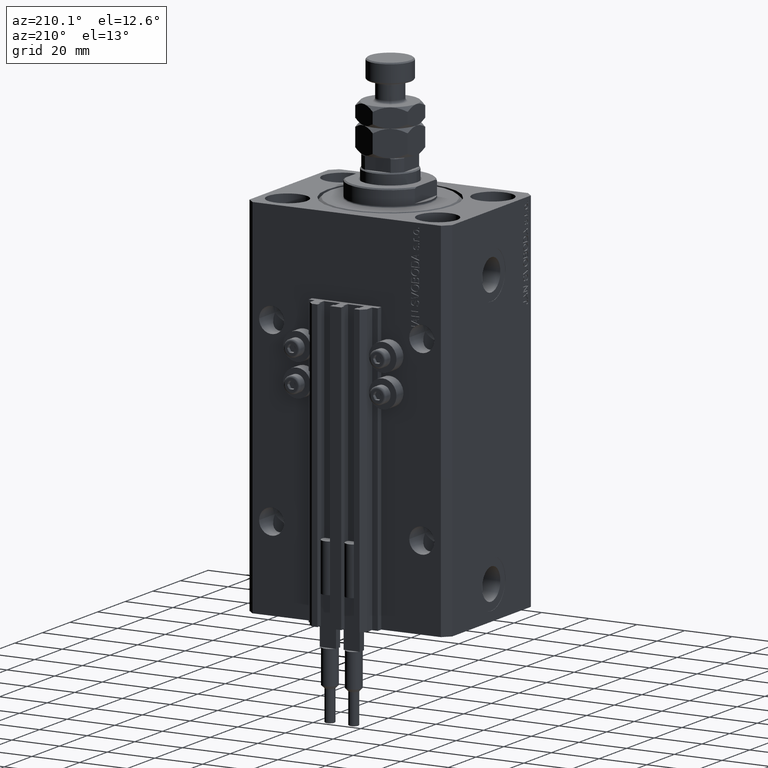
[diagram: clean part render]
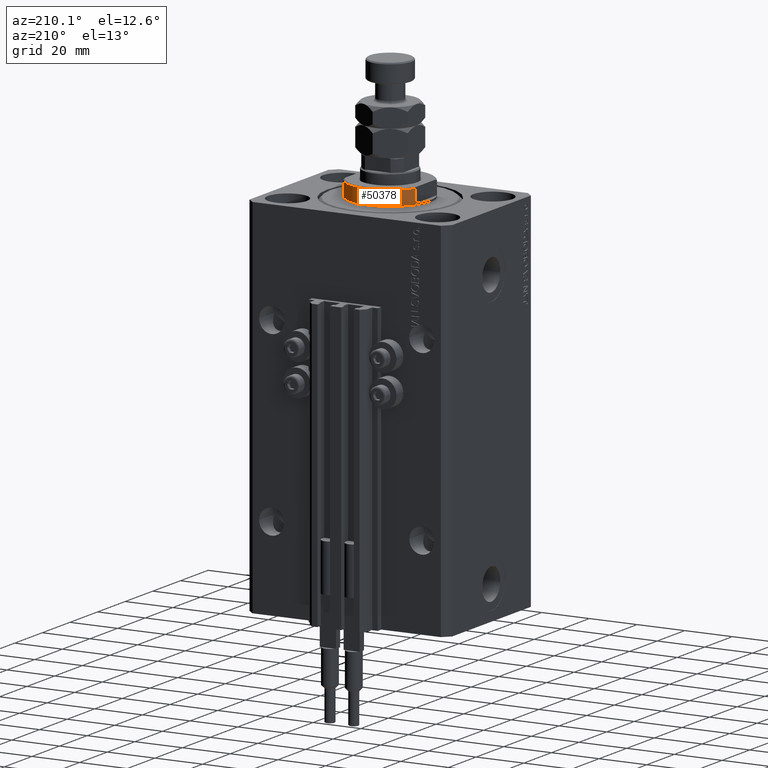
[diagram: same view with one face highlighted and labeled with its STEP entity id]
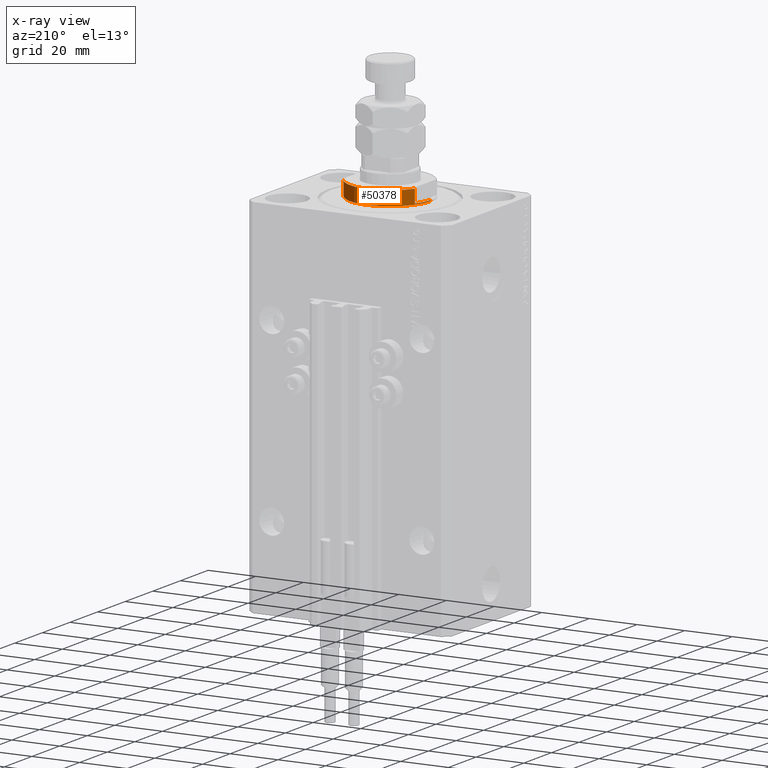
[diagram: x-ray of the same camera — body ghosted, the highlighted face saturated]
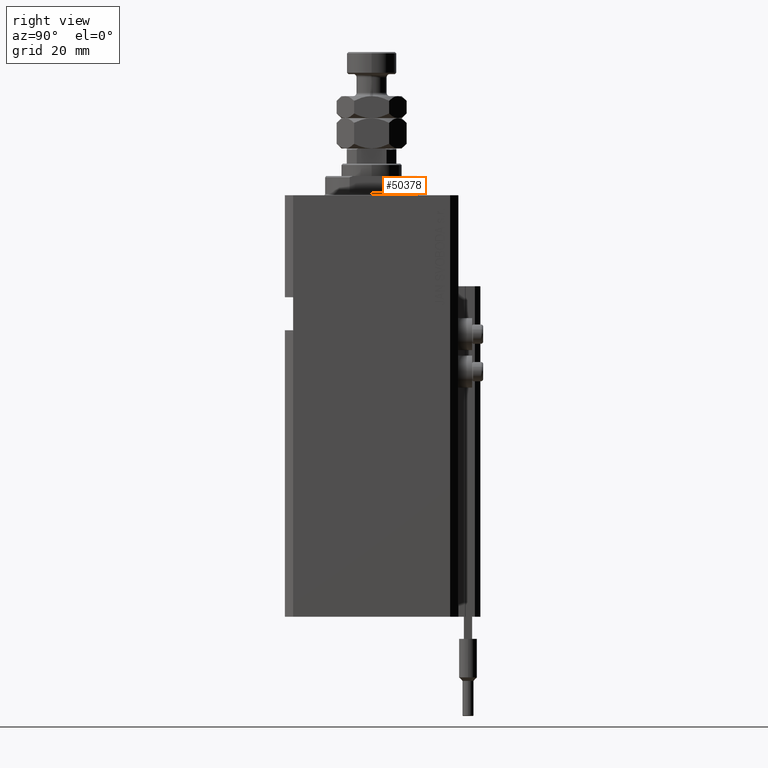
[diagram: same view with one face highlighted and labeled with its STEP entity id]
A machine part, auxiliary view. The second image highlights one B-rep face of the part: STEP entity #50378.
The next image is the same camera in x-ray: the body ghosted, the highlighted face saturated — about 0% of this face is hidden behind the body in this view.
A second angle (right view) of the same face is appended — the face is thin or edge-on in the first view.
In plain terms, the highlighted cylindrical surface (partial cylindrical patch) has radius 17 mm, axis along (0, 0, -1).
Its self-contained STEP definition (entity closure, byte-faithful):
#54 = AXIS2_PLACEMENT_3D ( 'NONE', #1094, #32272, #835 ) ;
#835 = DIRECTION ( 'NONE',  ( 1.000000000000000000, 0.000000000000000000, 0.000000000000000000 ) ) ;
#1094 = CARTESIAN_POINT ( 'NONE',  ( 0.000000000000000000, 0.000000000000000000, -0.4999999999999995559 ) ) ;
#1574 = ORIENTED_EDGE ( 'NONE', *, *, #16160, .T. ) ;
#2561 = CIRCLE ( 'NONE', #17216, 17.00000000000000000 ) ;
#3620 = VERTEX_POINT ( 'NONE', #35182 ) ;
#4242 = CARTESIAN_POINT ( 'NONE',  ( -17.00000000000000000, 2.081899558550500280E-15, -0.4999999999999995559 ) ) ;
#4660 = EDGE_LOOP ( 'NONE', ( #15458, #1574, #34697, #44778, #48544, #22144, #48150, #17509 ) ) ;
#6790 = EDGE_CURVE ( 'NONE', #32367, #38986, #22460, .T. ) ;
#8506 = DIRECTION ( 'NONE',  ( -1.000000000000000000, 0.000000000000000000, 0.000000000000000000 ) ) ;
#9695 = CARTESIAN_POINT ( 'NONE',  ( -15.00000000000000000, 8.000000000000001776, -6.500000000000013323 ) ) ;
#10234 = EDGE_CURVE ( 'NONE', #38986, #3620, #2561, .T. ) ;
#11352 = VERTEX_POINT ( 'NONE', #4242 ) ;
#11933 = CARTESIAN_POINT ( 'NONE',  ( -17.00000000000000000, 2.081899558550500280E-15, -7.000000000000000000 ) ) ;
#12528 = DIRECTION ( 'NONE',  ( -0.000000000000000000, -0.000000000000000000, 1.000000000000000000 ) ) ;
#12779 = VERTEX_POINT ( 'NONE', #34513 ) ;
#13050 = CIRCLE ( 'NONE', #31009, 17.00000000000000000 ) ;
#13862 = VECTOR ( 'NONE', #46033, 1000.000000000000000 ) ;
#14678 = VECTOR ( 'NONE', #18419, 1000.000000000000000 ) ;
#15458 = ORIENTED_EDGE ( 'NONE', *, *, #42333, .F. ) ;
#16160 = EDGE_CURVE ( 'NONE', #33889, #11352, #19847, .T. ) ;
#16244 = DIRECTION ( 'NONE',  ( -0.000000000000000000, -0.000000000000000000, 1.000000000000000000 ) ) ;
#17216 = AXIS2_PLACEMENT_3D ( 'NONE', #17731, #41043, #21078 ) ;
#17509 = ORIENTED_EDGE ( 'NONE', *, *, #43853, .T. ) ;
#17731 = CARTESIAN_POINT ( 'NONE',  ( 0.000000000000000000, 0.000000000000000000, -1.000000000000000000 ) ) ;
#18419 = DIRECTION ( 'NONE',  ( -0.000000000000000000, -0.000000000000000000, 1.000000000000000000 ) ) ;
#19847 = LINE ( 'NONE', #11933, #41234 ) ;
#20832 = CARTESIAN_POINT ( 'NONE',  ( -17.00000000000000000, 2.081899558550500280E-15, -1.000000000000000000 ) ) ;
#20950 = CARTESIAN_POINT ( 'NONE',  ( 0.000000000000000000, 0.000000000000000000, -6.500000000000013323 ) ) ;
#21078 = DIRECTION ( 'NONE',  ( -1.000000000000000000, 0.000000000000000000, 0.000000000000000000 ) ) ;
#22144 = ORIENTED_EDGE ( 'NONE', *, *, #6790, .F. ) ;
#22460 = LINE ( 'NONE', #38080, #13862 ) ;
#23910 = LINE ( 'NONE', #31858, #25260 ) ;
#24518 = FACE_OUTER_BOUND ( 'NONE', #4660, .T. ) ;
#24542 = DIRECTION ( 'NONE',  ( 0.000000000000000000, 0.000000000000000000, 1.000000000000000000 ) ) ;
#25260 = VECTOR ( 'NONE', #16244, 1000.000000000000000 ) ;
#26729 = VERTEX_POINT ( 'NONE', #9695 ) ;
#27925 = CARTESIAN_POINT ( 'NONE',  ( 0.000000000000000000, 0.000000000000000000, -1.000000000000000000 ) ) ;
#29387 = EDGE_CURVE ( 'NONE', #3620, #12779, #37370, .T. ) ;
#29681 = EDGE_CURVE ( 'NONE', #32367, #26729, #13050, .T. ) ;
#30972 = AXIS2_PLACEMENT_3D ( 'NONE', #27925, #43554, #8506 ) ;
#31009 = AXIS2_PLACEMENT_3D ( 'NONE', #20950, #24542, #36580 ) ;
#31213 = CARTESIAN_POINT ( 'NONE',  ( 0.000000000000000000, 0.000000000000000000, -7.000000000000000000 ) ) ;
#31342 = EDGE_CURVE ( 'NONE', #11352, #12779, #46645, .T. ) ;
#31858 = CARTESIAN_POINT ( 'NONE',  ( -15.00000000000000000, 8.000000000000001776, -7.000000000000000000 ) ) ;
#32272 = DIRECTION ( 'NONE',  ( -0.000000000000000000, -0.000000000000000000, -1.000000000000000000 ) ) ;
#32367 = VERTEX_POINT ( 'NONE', #34771 ) ;
#33889 = VERTEX_POINT ( 'NONE', #20832 ) ;
#34513 = CARTESIAN_POINT ( 'NONE',  ( 17.00000000000000000, 0.000000000000000000, -0.4999999999999995559 ) ) ;
#34697 = ORIENTED_EDGE ( 'NONE', *, *, #31342, .T. ) ;
#34771 = CARTESIAN_POINT ( 'NONE',  ( 15.00000000000000000, 8.000000000000001776, -6.500000000000013323 ) ) ;
#35182 = CARTESIAN_POINT ( 'NONE',  ( 17.00000000000000000, 0.000000000000000000, -1.000000000000000000 ) ) ;
#36300 = VERTEX_POINT ( 'NONE', #47042 ) ;
#36580 = DIRECTION ( 'NONE',  ( -1.000000000000000000, 0.000000000000000000, 0.000000000000000000 ) ) ;
#37370 = LINE ( 'NONE', #41972, #14678 ) ;
#38080 = CARTESIAN_POINT ( 'NONE',  ( 15.00000000000000000, 8.000000000000001776, -7.000000000000000000 ) ) ;
#38986 = VERTEX_POINT ( 'NONE', #48858 ) ;
#39796 = DIRECTION ( 'NONE',  ( -0.000000000000000000, -0.000000000000000000, 1.000000000000000000 ) ) ;
#40152 = DIRECTION ( 'NONE',  ( 1.000000000000000000, 0.000000000000000000, 0.000000000000000000 ) ) ;
#41043 = DIRECTION ( 'NONE',  ( 0.000000000000000000, 0.000000000000000000, -1.000000000000000000 ) ) ;
#41234 = VECTOR ( 'NONE', #39796, 1000.000000000000000 ) ;
#41972 = CARTESIAN_POINT ( 'NONE',  ( 17.00000000000000000, 0.000000000000000000, -7.000000000000000000 ) ) ;
#42333 = EDGE_CURVE ( 'NONE', #33889, #36300, #50593, .T. ) ;
#43230 = CYLINDRICAL_SURFACE ( 'NONE', #44242, 17.00000000000000000 ) ;
#43554 = DIRECTION ( 'NONE',  ( 0.000000000000000000, 0.000000000000000000, -1.000000000000000000 ) ) ;
#43853 = EDGE_CURVE ( 'NONE', #26729, #36300, #23910, .T. ) ;
#44242 = AXIS2_PLACEMENT_3D ( 'NONE', #31213, #12528, #40152 ) ;
#44778 = ORIENTED_EDGE ( 'NONE', *, *, #29387, .F. ) ;
#46033 = DIRECTION ( 'NONE',  ( -0.000000000000000000, -0.000000000000000000, 1.000000000000000000 ) ) ;
#46645 = CIRCLE ( 'NONE', #54, 17.00000000000000000 ) ;
#47042 = CARTESIAN_POINT ( 'NONE',  ( -14.99999999999999645, 8.000000000000003553, -1.000000000000000000 ) ) ;
#48150 = ORIENTED_EDGE ( 'NONE', *, *, #29681, .T. ) ;
#48544 = ORIENTED_EDGE ( 'NONE', *, *, #10234, .F. ) ;
#48858 = CARTESIAN_POINT ( 'NONE',  ( 14.99999999999999645, 8.000000000000003553, -1.000000000000000000 ) ) ;
#50378 = ADVANCED_FACE ( 'NONE', ( #24518 ), #43230, .T. ) ;
#50593 = CIRCLE ( 'NONE', #30972, 17.00000000000000000 ) ;